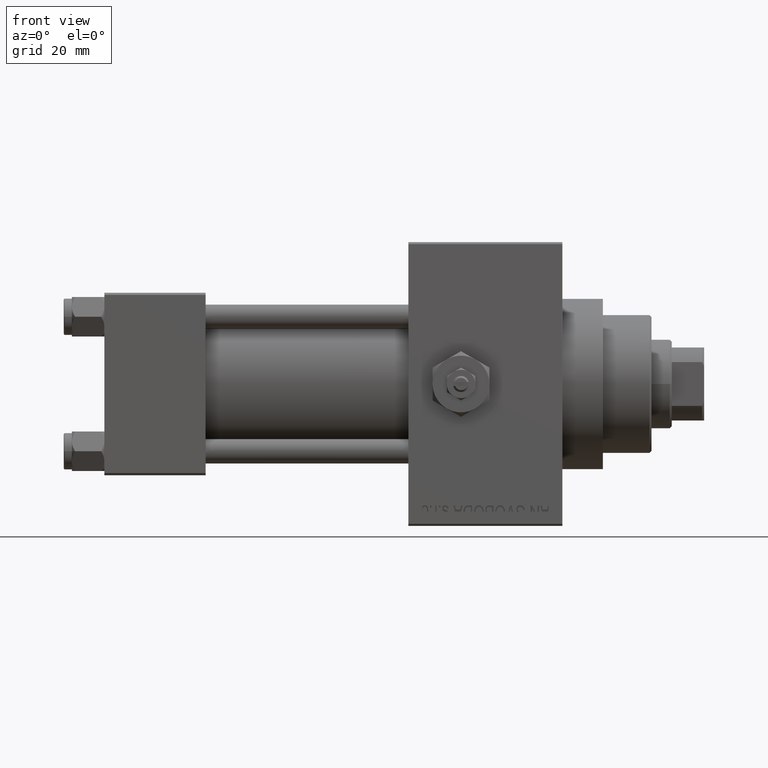
[diagram: clean part render]
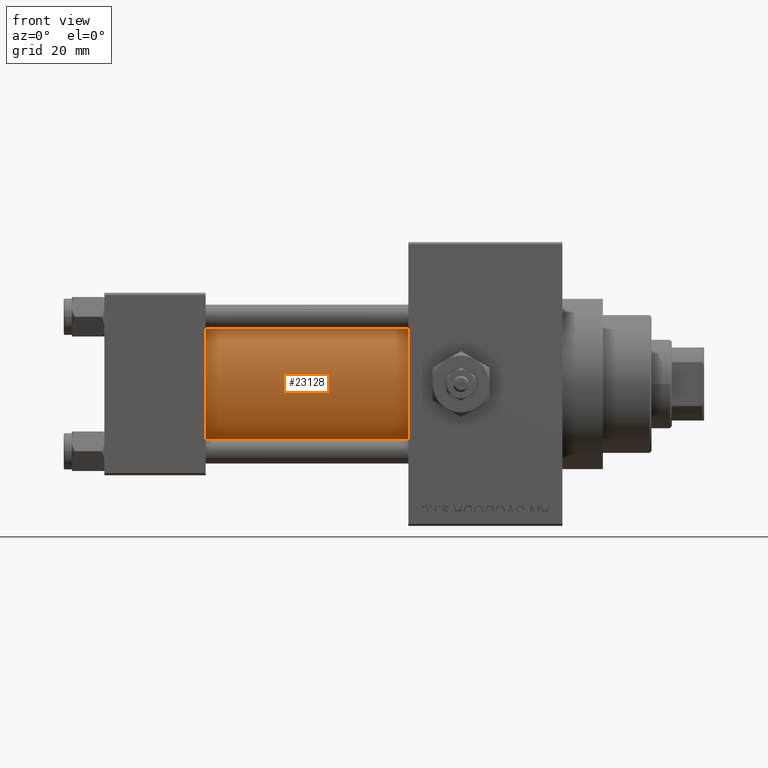
[diagram: same view with one face highlighted and labeled with its STEP entity id]
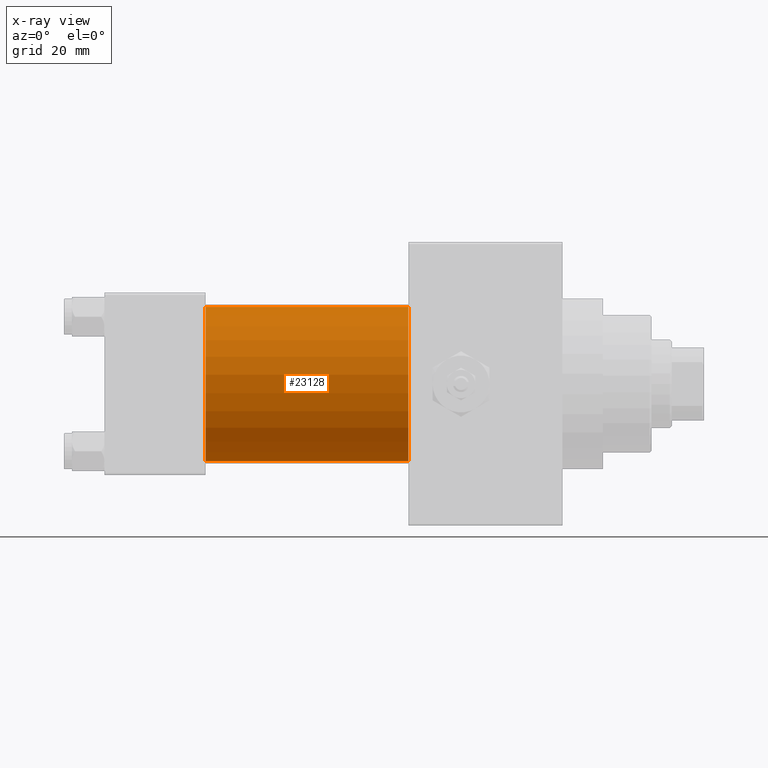
[diagram: x-ray of the same camera — body ghosted, the highlighted face saturated]
A machine part, front view. The second image highlights one B-rep face of the part: STEP entity #23128.
The next image is the same camera in x-ray: the body ghosted, the highlighted face saturated — about 0% of this face is hidden behind the body in this view.
In plain terms, the highlighted cylindrical surface (partial cylindrical patch) has radius 19 mm, axis along (-1, -0, -0).
Its self-contained STEP definition (entity closure, byte-faithful):
#695 = VECTOR ( 'NONE', #5235, 1000.000000000000000 ) ;
#1422 = CARTESIAN_POINT ( 'NONE',  ( 75.00000000000001421, -2.602085213965210642E-15, 0.000000000000000000 ) ) ;
#2042 = CIRCLE ( 'NONE', #40641, 19.00000000000000000 ) ;
#3914 = AXIS2_PLACEMENT_3D ( 'NONE', #37897, #30758, #11521 ) ;
#5011 = CARTESIAN_POINT ( 'NONE',  ( 75.00000000000001421, -2.602085213965210642E-15, 0.000000000000000000 ) ) ;
#5235 = DIRECTION ( 'NONE',  ( -1.000000000000000000, -0.000000000000000000, -0.000000000000000000 ) ) ;
#5340 = DIRECTION ( 'NONE',  ( -1.000000000000000000, -0.000000000000000000, -0.000000000000000000 ) ) ;
#5758 = ORIENTED_EDGE ( 'NONE', *, *, #6365, .T. ) ;
#6365 = EDGE_CURVE ( 'NONE', #14091, #13690, #46299, .T. ) ;
#8636 = EDGE_CURVE ( 'NONE', #14091, #48355, #2042, .T. ) ;
#9225 = FACE_OUTER_BOUND ( 'NONE', #9231, .T. ) ;
#9231 = EDGE_LOOP ( 'NONE', ( #25085, #41725, #5758, #31571 ) ) ;
#11521 = DIRECTION ( 'NONE',  ( 0.000000000000000000, 0.000000000000000000, 1.000000000000000000 ) ) ;
#13690 = VERTEX_POINT ( 'NONE', #39214 ) ;
#13691 = DIRECTION ( 'NONE',  ( 0.000000000000000000, 0.000000000000000000, -1.000000000000000000 ) ) ;
#14091 = VERTEX_POINT ( 'NONE', #32430 ) ;
#14969 = AXIS2_PLACEMENT_3D ( 'NONE', #5011, #45959, #31670 ) ;
#18670 = EDGE_CURVE ( 'NONE', #48355, #33566, #31412, .T. ) ;
#19848 = CYLINDRICAL_SURFACE ( 'NONE', #14969, 19.00000000000000000 ) ;
#19935 = EDGE_CURVE ( 'NONE', #13690, #33566, #24392, .T. ) ;
#22477 = VECTOR ( 'NONE', #5340, 1000.000000000000000 ) ;
#23128 = ADVANCED_FACE ( 'NONE', ( #9225 ), #19848, .T. ) ;
#23303 = CARTESIAN_POINT ( 'NONE',  ( 25.00000000000000000, -2.752562955852396712E-16, -19.00000000000000000 ) ) ;
#24392 = CIRCLE ( 'NONE', #3914, 19.00000000000000000 ) ;
#25085 = ORIENTED_EDGE ( 'NONE', *, *, #18670, .F. ) ;
#30758 = DIRECTION ( 'NONE',  ( 1.000000000000000000, -0.000000000000000000, 0.000000000000000000 ) ) ;
#31412 = LINE ( 'NONE', #39044, #695 ) ;
#31571 = ORIENTED_EDGE ( 'NONE', *, *, #19935, .T. ) ;
#31670 = DIRECTION ( 'NONE',  ( 0.000000000000000000, 0.000000000000000000, 1.000000000000000000 ) ) ;
#32430 = CARTESIAN_POINT ( 'NONE',  ( 75.00000000000001421, -2.602085213965210642E-15, 19.00000000000000000 ) ) ;
#33566 = VERTEX_POINT ( 'NONE', #23303 ) ;
#34966 = CARTESIAN_POINT ( 'NONE',  ( 75.00000000000001421, -2.602085213965210642E-15, 19.00000000000000000 ) ) ;
#37897 = CARTESIAN_POINT ( 'NONE',  ( 25.00000000000000000, -2.602085213965210642E-15, 0.000000000000000000 ) ) ;
#39044 = CARTESIAN_POINT ( 'NONE',  ( 75.00000000000001421, -2.752562955852396712E-16, -19.00000000000000000 ) ) ;
#39214 = CARTESIAN_POINT ( 'NONE',  ( 25.00000000000000000, -2.602085213965210642E-15, 19.00000000000000000 ) ) ;
#39369 = CARTESIAN_POINT ( 'NONE',  ( 75.00000000000001421, -2.752562955852396712E-16, -19.00000000000000000 ) ) ;
#40641 = AXIS2_PLACEMENT_3D ( 'NONE', #1422, #42851, #13691 ) ;
#41725 = ORIENTED_EDGE ( 'NONE', *, *, #8636, .F. ) ;
#42851 = DIRECTION ( 'NONE',  ( 1.000000000000000000, 0.000000000000000000, 0.000000000000000000 ) ) ;
#45959 = DIRECTION ( 'NONE',  ( -1.000000000000000000, -0.000000000000000000, -0.000000000000000000 ) ) ;
#46299 = LINE ( 'NONE', #34966, #22477 ) ;
#48355 = VERTEX_POINT ( 'NONE', #39369 ) ;